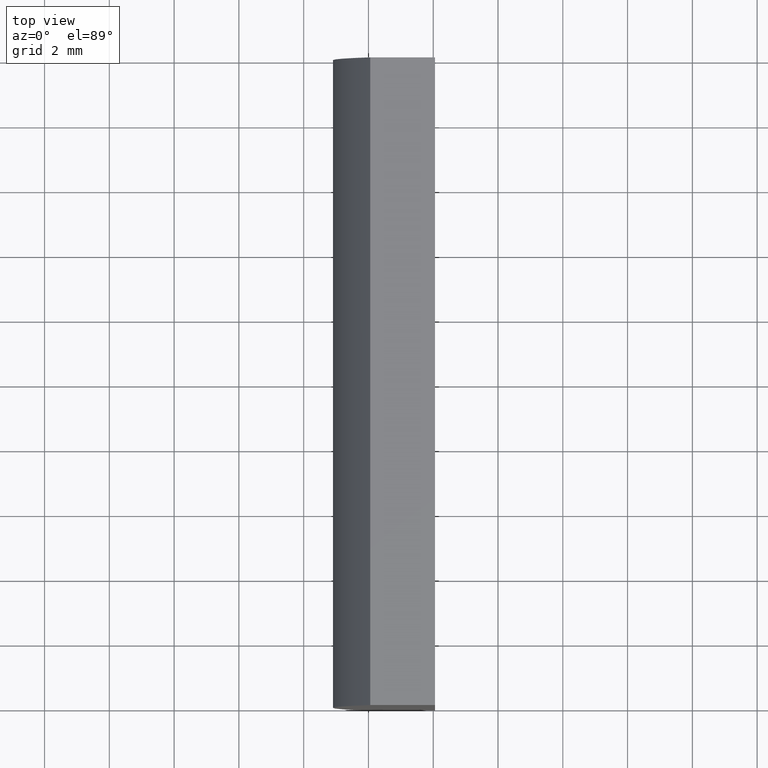
[diagram: clean part render]
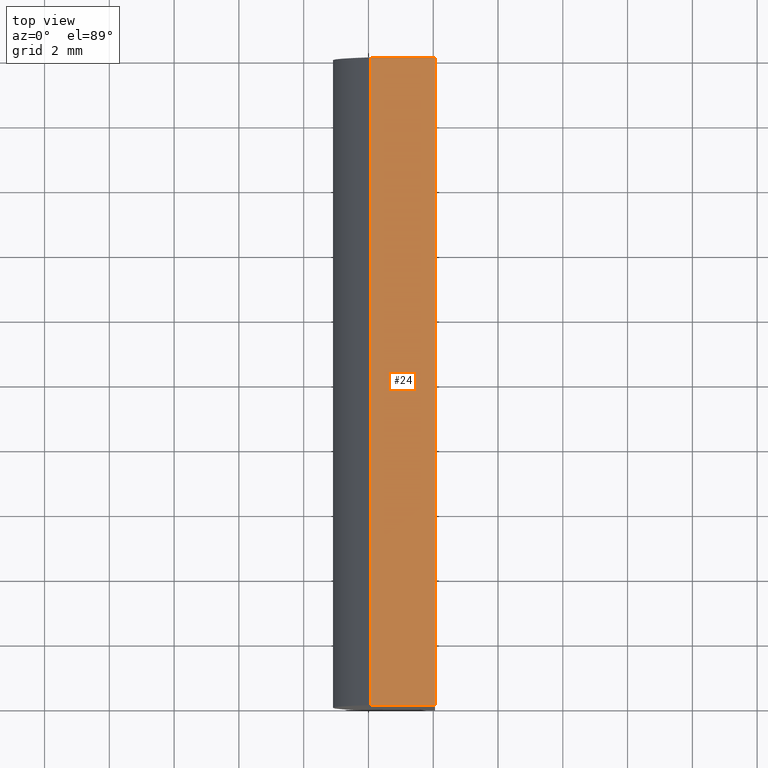
[diagram: same view with one face highlighted and labeled with its STEP entity id]
A machine part, top view. The second image highlights one B-rep face of the part: STEP entity #24.
In plain terms, the highlighted planar face has unit normal (0, 0, -1).
Its self-contained STEP definition (entity closure, byte-faithful):
#1 = DIRECTION ( 'NONE',  ( 0.0000000000000000000, 0.0000000000000000000, -1.000000000000000000 ) ) ;
#9 = LINE ( 'NONE', #197, #173 ) ;
#13 = VECTOR ( 'NONE', #142, 1000.000000000000000 ) ;
#18 = CARTESIAN_POINT ( 'NONE',  ( -5.945402443392432600, 0.0000000000000000000, 5.000000000000000000 ) ) ;
#24 = ADVANCED_FACE ( 'NONE', ( #48 ), #160, .F. ) ;
#27 = DIRECTION ( 'NONE',  ( -1.000000000000000000, 0.0000000000000000000, -0.0000000000000000000 ) ) ;
#29 = EDGE_CURVE ( 'NONE', #145, #136, #86, .T. ) ;
#34 = EDGE_CURVE ( 'NONE', #117, #145, #9, .T. ) ;
#43 = CARTESIAN_POINT ( 'NONE',  ( -5.945402443392432600, 20.00000000000000000, 5.000000000000000000 ) ) ;
#47 = CARTESIAN_POINT ( 'NONE',  ( -5.945402443392432600, 0.0000000000000000000, 5.000000000000000000 ) ) ;
#48 = FACE_OUTER_BOUND ( 'NONE', #51, .T. ) ;
#51 = EDGE_LOOP ( 'NONE', ( #129, #154, #55, #64 ) ) ;
#55 = ORIENTED_EDGE ( 'NONE', *, *, #34, .F. ) ;
#64 = ORIENTED_EDGE ( 'NONE', *, *, #75, .T. ) ;
#75 = EDGE_CURVE ( 'NONE', #117, #141, #169, .T. ) ;
#79 = VECTOR ( 'NONE', #104, 1000.000000000000000 ) ;
#86 = LINE ( 'NONE', #151, #13 ) ;
#104 = DIRECTION ( 'NONE',  ( -0.0000000000000000000, -1.000000000000000000, -0.0000000000000000000 ) ) ;
#106 = CARTESIAN_POINT ( 'NONE',  ( -5.945402443392432600, 20.00000000000000000, 5.000000000000000000 ) ) ;
#113 = CARTESIAN_POINT ( 'NONE',  ( -3.944795665148734800, 0.0000000000000000000, 5.000000000000000000 ) ) ;
#117 = VERTEX_POINT ( 'NONE', #43 ) ;
#123 = VECTOR ( 'NONE', #202, 1000.000000000000000 ) ;
#129 = ORIENTED_EDGE ( 'NONE', *, *, #143, .T. ) ;
#136 = VERTEX_POINT ( 'NONE', #113 ) ;
#141 = VERTEX_POINT ( 'NONE', #47 ) ;
#142 = DIRECTION ( 'NONE',  ( -0.0000000000000000000, -1.000000000000000000, -0.0000000000000000000 ) ) ;
#143 = EDGE_CURVE ( 'NONE', #141, #136, #156, .T. ) ;
#145 = VERTEX_POINT ( 'NONE', #199 ) ;
#151 = CARTESIAN_POINT ( 'NONE',  ( -3.944795665148734800, 20.00000000000000000, 5.000000000000000000 ) ) ;
#154 = ORIENTED_EDGE ( 'NONE', *, *, #29, .F. ) ;
#156 = LINE ( 'NONE', #18, #123 ) ;
#160 = PLANE ( 'NONE',  #194 ) ;
#169 = LINE ( 'NONE', #193, #79 ) ;
#173 = VECTOR ( 'NONE', #176, 1000.000000000000000 ) ;
#176 = DIRECTION ( 'NONE',  ( 1.000000000000000000, 0.0000000000000000000, 0.0000000000000000000 ) ) ;
#193 = CARTESIAN_POINT ( 'NONE',  ( -5.945402443392432600, 20.00000000000000000, 5.000000000000000000 ) ) ;
#194 = AXIS2_PLACEMENT_3D ( 'NONE', #106, #1, #27 ) ;
#197 = CARTESIAN_POINT ( 'NONE',  ( -5.945402443392432600, 20.00000000000000000, 5.000000000000000000 ) ) ;
#199 = CARTESIAN_POINT ( 'NONE',  ( -3.944795665148734800, 20.00000000000000000, 5.000000000000000000 ) ) ;
#202 = DIRECTION ( 'NONE',  ( 1.000000000000000000, 0.0000000000000000000, 0.0000000000000000000 ) ) ;